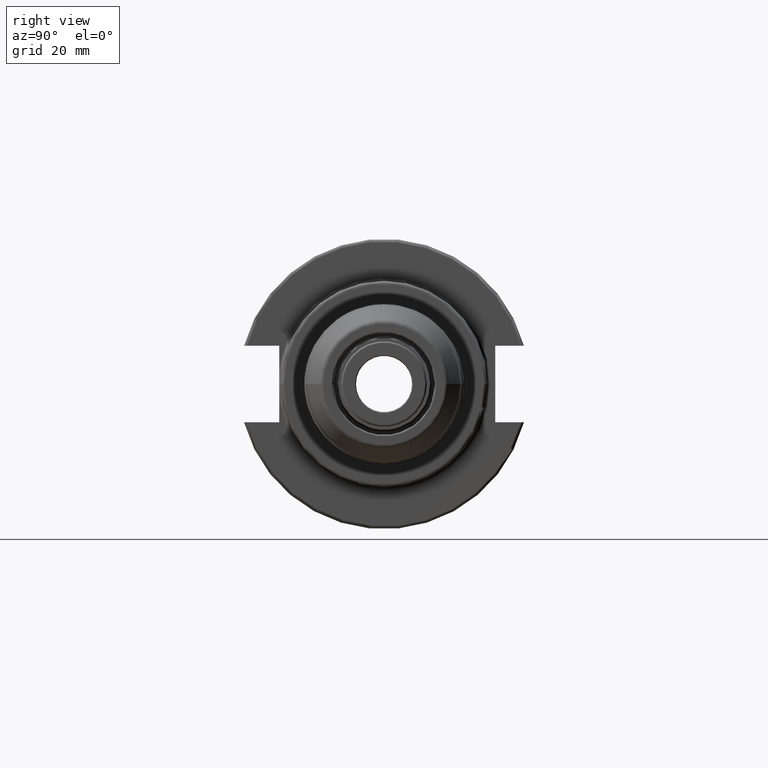
[diagram: clean part render]
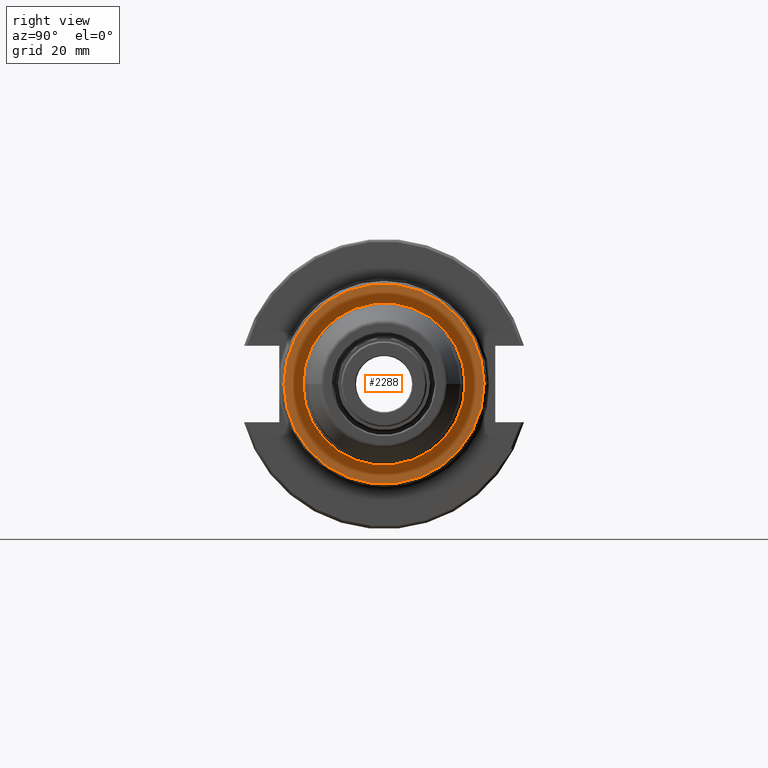
[diagram: same view with one face highlighted and labeled with its STEP entity id]
A machine part, right view. The second image highlights one B-rep face of the part: STEP entity #2288.
In plain terms, the highlighted planar face has unit normal (1, 0, 0).
Its self-contained STEP definition (entity closure, byte-faithful):
#546=CARTESIAN_POINT('',(3.5E1,0.E0,0.E0));
#547=DIRECTION('',(-1.E0,0.E0,0.E0));
#548=DIRECTION('',(0.E0,1.E0,0.E0));
#549=AXIS2_PLACEMENT_3D('',#546,#547,#548);
#551=CARTESIAN_POINT('',(3.5E1,0.E0,0.E0));
#552=DIRECTION('',(-1.E0,0.E0,0.E0));
#553=DIRECTION('',(0.E0,-1.E0,0.E0));
#554=AXIS2_PLACEMENT_3D('',#551,#552,#553);
#556=CARTESIAN_POINT('',(3.5E1,0.E0,0.E0));
#557=DIRECTION('',(1.E0,0.E0,0.E0));
#558=DIRECTION('',(0.E0,-1.E0,0.E0));
#559=AXIS2_PLACEMENT_3D('',#556,#557,#558);
#561=CARTESIAN_POINT('',(3.5E1,0.E0,0.E0));
#562=DIRECTION('',(1.E0,0.E0,0.E0));
#563=DIRECTION('',(0.E0,1.E0,0.E0));
#564=AXIS2_PLACEMENT_3D('',#561,#562,#563);
#1373=CARTESIAN_POINT('',(3.5E1,3.3925E1,0.E0));
#1374=CARTESIAN_POINT('',(3.5E1,-3.3925E1,0.E0));
#1375=VERTEX_POINT('',#1373);
#1376=VERTEX_POINT('',#1374);
#1377=CARTESIAN_POINT('',(3.5E1,-2.75E1,-3.116046393706E-14));
#1378=CARTESIAN_POINT('',(3.5E1,2.75E1,1.558023196853E-14));
#1379=VERTEX_POINT('',#1377);
#1380=VERTEX_POINT('',#1378);
#2272=CARTESIAN_POINT('',(3.5E1,0.E0,0.E0));
#2273=DIRECTION('',(1.E0,0.E0,0.E0));
#2274=DIRECTION('',(0.E0,-1.E0,0.E0));
#2275=AXIS2_PLACEMENT_3D('',#2272,#2273,#2274);
#2276=PLANE('',#2275);
#2278=ORIENTED_EDGE('',*,*,#2277,.T.);
#2280=ORIENTED_EDGE('',*,*,#2279,.T.);
#2281=EDGE_LOOP('',(#2278,#2280));
#2282=FACE_OUTER_BOUND('',#2281,.F.);
#2284=ORIENTED_EDGE('',*,*,#2283,.T.);
#2285=ORIENTED_EDGE('',*,*,#2262,.T.);
#2286=EDGE_LOOP('',(#2284,#2285));
#2287=FACE_BOUND('',#2286,.F.);
#2288=ADVANCED_FACE('',(#2282,#2287),#2276,.T.);
#550=CIRCLE('',#549,3.3925E1);
#555=CIRCLE('',#554,3.3925E1);
#560=CIRCLE('',#559,2.75E1);
#565=CIRCLE('',#564,2.75E1);
#2262=EDGE_CURVE('',#1380,#1379,#565,.T.);
#2277=EDGE_CURVE('',#1375,#1376,#550,.T.);
#2279=EDGE_CURVE('',#1376,#1375,#555,.T.);
#2283=EDGE_CURVE('',#1379,#1380,#560,.T.);